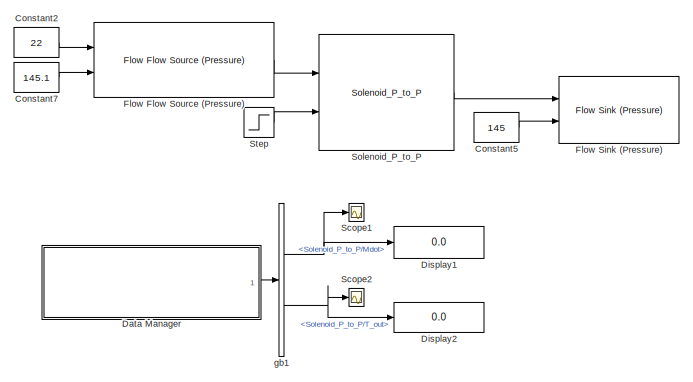
[diagram: root canvas - part 1/3, top center region]
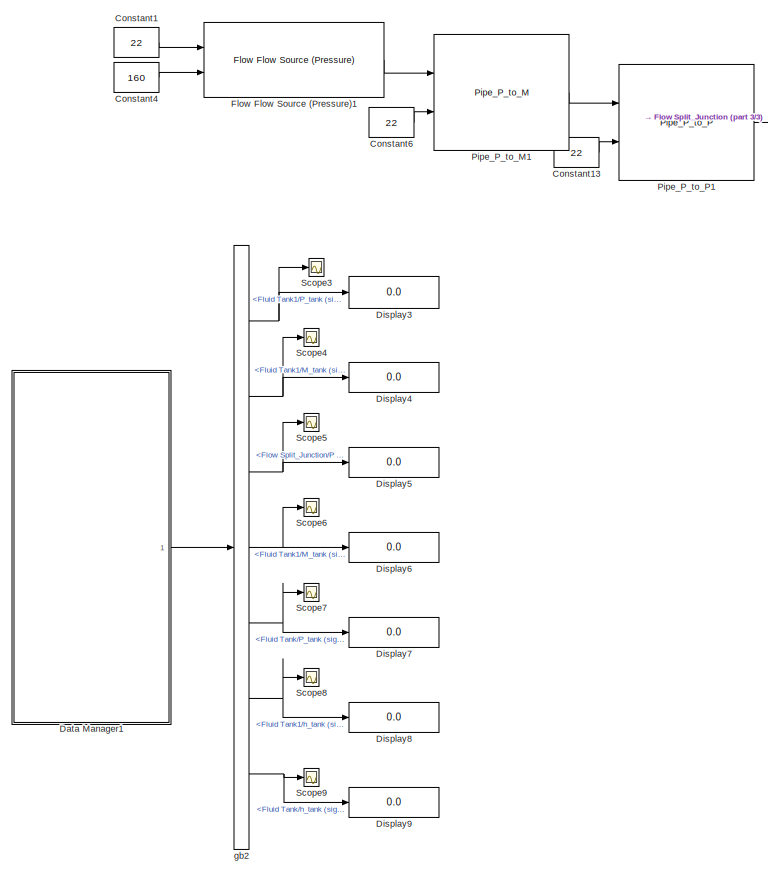
[diagram: root canvas - part 2/3, middle left region]
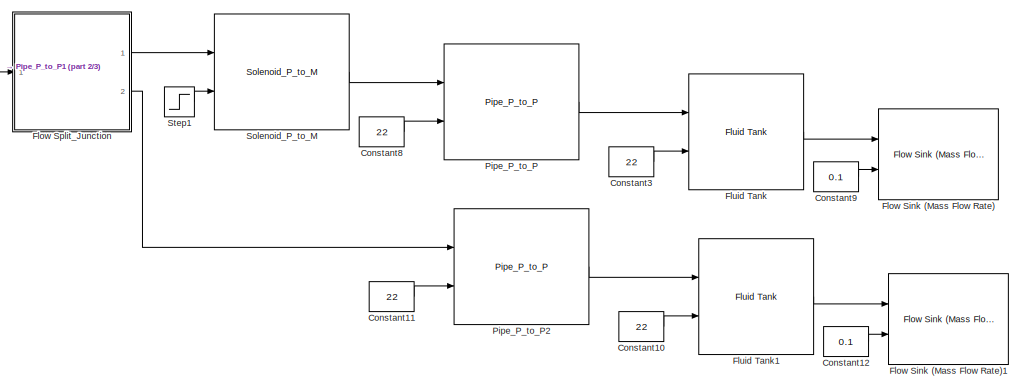
[diagram: root canvas - part 3/3, middle right region]
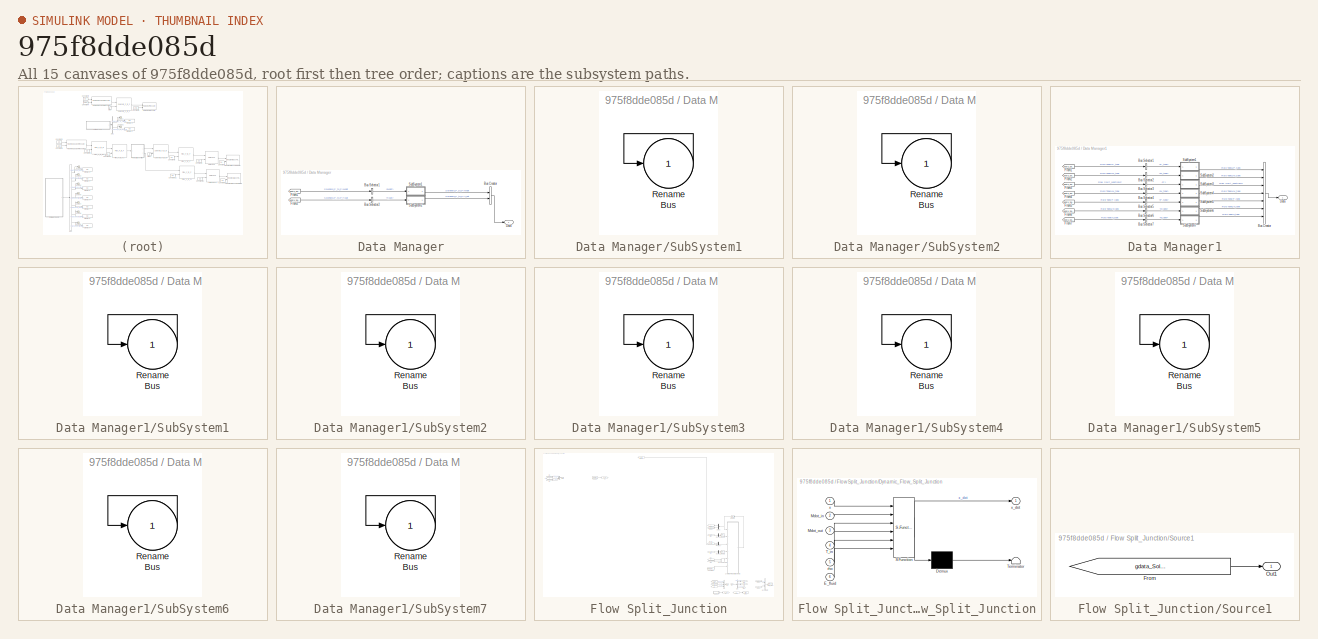
[diagram: thumbnail index - all 15 canvases of the model, root first then tree order]
MODEL slx_975f8dde085d
KIND model
BLOCK [Constant] Constant1
  Value = 22
BLOCK [Constant] Constant10
  Value = 22
BLOCK [Constant] Constant11
  Value = 22
BLOCK [Constant] Constant12
  Value = 0.1
BLOCK [Constant] Constant13
  Value = 22
BLOCK [Constant] Constant2
  Value = 22
BLOCK [Constant] Constant3
  Value = 22
BLOCK [Constant] Constant4
  Value = 160
BLOCK [Constant] Constant5
  Value = 145
BLOCK [Constant] Constant6
  Value = 22
BLOCK [Constant] Constant7
  Value = 145.1
BLOCK [Constant] Constant8
  Value = 22
BLOCK [Constant] Constant9
  Value = 0.1
BLOCK [SubSystem] Data Manager
  AncestorBlock = DAEMOT_Lib/Support Functions/Data Manager
  OpenFcn = data_manager
  Ports = [0, 1]
  RequestExecContextInheritance = off
  UserDataPersistent = on
BLOCK [BusCreator] Data Manager/Bus Creator
  DisplayOption = bar
  Inputs = 2
  Ports = [2, 1]
BLOCK [BusSelector] Data Manager/Bus Selector1
  OutputSignals = Mdot
  Ports = [1, 1]
BLOCK [BusSelector] Data Manager/Bus Selector2
  OutputSignals = T_out
  Ports = [1, 1]
BLOCK [Outport] Data Manager/Data
  IconDisplay = Port number
BLOCK [From] Data Manager/From1
  GotoTag = gdata_Solenoid_testSolenoid_P_to_Pdata_sink1
  TagVisibility = global
  UserDataPersistent = on
BLOCK [From] Data Manager/From2
  GotoTag = gdata_Solenoid_testSolenoid_P_to_Pdata_sink1
  TagVisibility = global
  UserDataPersistent = on
BLOCK [SubSystem] Data Manager/SubSystem1
  Ports = [1, 1]
  RequestExecContextInheritance = off
BLOCK [Outport] Data Manager/SubSystem1/Bus
  IconDisplay = Port number
BLOCK [Inport] Data Manager/SubSystem1/Rename
  IconDisplay = Port number
BLOCK [SubSystem] Data Manager/SubSystem2
  Ports = [1, 1]
  RequestExecContextInheritance = off
BLOCK [Outport] Data Manager/SubSystem2/Bus
  IconDisplay = Port number
BLOCK [Inport] Data Manager/SubSystem2/Rename
  IconDisplay = Port number
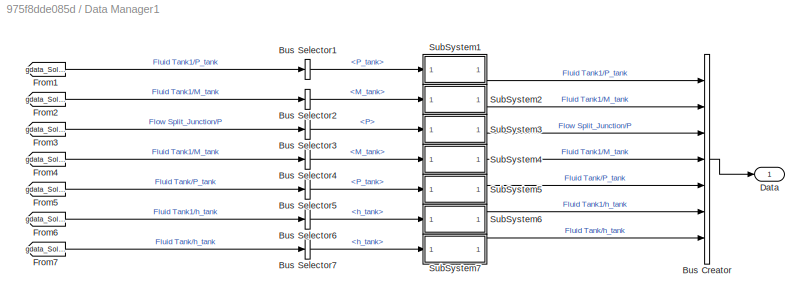
BLOCK [SubSystem] Data Manager1
  AncestorBlock = DAEMOT_Lib/Support Functions/Data Manager
  OpenFcn = data_manager
  Ports = [0, 1]
  RequestExecContextInheritance = off
  UserDataPersistent = on
BLOCK [BusCreator] Data Manager1/Bus Creator
  DisplayOption = bar
  Inputs = 7
  Ports = [7, 1]
BLOCK [BusSelector] Data Manager1/Bus Selector1
  OutputSignals = P_tank
  Ports = [1, 1]
BLOCK [BusSelector] Data Manager1/Bus Selector2
  OutputSignals = M_tank
  Ports = [1, 1]
BLOCK [BusSelector] Data Manager1/Bus Selector3
  OutputSignals = P
  Ports = [1, 1]
BLOCK [BusSelector] Data Manager1/Bus Selector4
  OutputSignals = M_tank
  Ports = [1, 1]
BLOCK [BusSelector] Data Manager1/Bus Selector5
  OutputSignals = P_tank
  Ports = [1, 1]
BLOCK [BusSelector] Data Manager1/Bus Selector6
  OutputSignals = h_tank
  Ports = [1, 1]
BLOCK [BusSelector] Data Manager1/Bus Selector7
  OutputSignals = h_tank
  Ports = [1, 1]
BLOCK [Outport] Data Manager1/Data
  IconDisplay = Port number
BLOCK [From] Data Manager1/From1
  GotoTag = gdata_Solenoid_testFluidTank1data_sink1
  TagVisibility = global
  UserDataPersistent = on
BLOCK [From] Data Manager1/From2
  GotoTag = gdata_Solenoid_testFluidTank1data_sink1
  TagVisibility = global
  UserDataPersistent = on
BLOCK [From] Data Manager1/From3
  GotoTag = gdata_Solenoid_testFlowSplit_Junctiondata_sink1
  TagVisibility = global
  UserDataPersistent = on
BLOCK [From] Data Manager1/From4
  GotoTag = gdata_Solenoid_testFluidTank1data_sink1
  TagVisibility = global
  UserDataPersistent = on
BLOCK [From] Data Manager1/From5
  GotoTag = gdata_Solenoid_testFluidTankdata_sink1
  TagVisibility = global
  UserDataPersistent = on
BLOCK [From] Data Manager1/From6
  GotoTag = gdata_Solenoid_testFluidTank1data_sink1
  TagVisibility = global
  UserDataPersistent = on
BLOCK [From] Data Manager1/From7
  GotoTag = gdata_Solenoid_testFluidTankdata_sink1
  TagVisibility = global
  UserDataPersistent = on
BLOCK [SubSystem] Data Manager1/SubSystem1
  Ports = [1, 1]
  RequestExecContextInheritance = off
BLOCK [Outport] Data Manager1/SubSystem1/Bus
  IconDisplay = Port number
BLOCK [Inport] Data Manager1/SubSystem1/Rename
  IconDisplay = Port number
BLOCK [SubSystem] Data Manager1/SubSystem2
  Ports = [1, 1]
  RequestExecContextInheritance = off
BLOCK [Outport] Data Manager1/SubSystem2/Bus
  IconDisplay = Port number
BLOCK [Inport] Data Manager1/SubSystem2/Rename
  IconDisplay = Port number
BLOCK [SubSystem] Data Manager1/SubSystem3
  Ports = [1, 1]
  RequestExecContextInheritance = off
BLOCK [Outport] Data Manager1/SubSystem3/Bus
  IconDisplay = Port number
BLOCK [Inport] Data Manager1/SubSystem3/Rename
  IconDisplay = Port number
BLOCK [SubSystem] Data Manager1/SubSystem4
  Ports = [1, 1]
  RequestExecContextInheritance = off
BLOCK [Outport] Data Manager1/SubSystem4/Bus
  IconDisplay = Port number
BLOCK [Inport] Data Manager1/SubSystem4/Rename
  IconDisplay = Port number
BLOCK [SubSystem] Data Manager1/SubSystem5
  Ports = [1, 1]
  RequestExecContextInheritance = off
BLOCK [Outport] Data Manager1/SubSystem5/Bus
  IconDisplay = Port number
BLOCK [Inport] Data Manager1/SubSystem5/Rename
  IconDisplay = Port number
BLOCK [SubSystem] Data Manager1/SubSystem6
  Ports = [1, 1]
  RequestExecContextInheritance = off
BLOCK [Outport] Data Manager1/SubSystem6/Bus
  IconDisplay = Port number
BLOCK [Inport] Data Manager1/SubSystem6/Rename
  IconDisplay = Port number
BLOCK [SubSystem] Data Manager1/SubSystem7
  Ports = [1, 1]
  RequestExecContextInheritance = off
BLOCK [Outport] Data Manager1/SubSystem7/Bus
  IconDisplay = Port number
BLOCK [Inport] Data Manager1/SubSystem7/Rename
  IconDisplay = Port number
BLOCK [Display] Display1
  Decimation = 1
  Ports = [1]
BLOCK [Display] Display2
  Decimation = 1
  Ports = [1]
BLOCK [Display] Display3
  Decimation = 1
  Ports = [1]
BLOCK [Display] Display4
  Decimation = 1
  Ports = [1]
BLOCK [Display] Display5
  Decimation = 1
  Ports = [1]
BLOCK [Display] Display6
  Decimation = 1
  Ports = [1]
BLOCK [Display] Display7
  Decimation = 1
  Ports = [1]
BLOCK [Display] Display8
  Decimation = 1
  Ports = [1]
BLOCK [Display] Display9
  Decimation = 1
  Ports = [1]
BLOCK [Reference] Flow Flow Source (Pressure)  REF=DAEMOT_Lib/Components/Flow Flow Source (Pressure)
  M = 0
  M_ext = on
  P = 0
  P_ext = on
  Ports = [2, 1]
  SourceBlock = DAEMOT_Lib/Components/Flow Flow Source (Pressure)
  SourceType = Flow Source (Pressure)
  T = 0
  T_ext = on
BLOCK [Reference] Flow Flow Source (Pressure)1  REF=DAEMOT_Lib/Components/Flow Flow Source (Pressure)
  M = 0
  M_ext = on
  P = 0
  P_ext = on
  Ports = [2, 1]
  SourceBlock = DAEMOT_Lib/Components/Flow Flow Source (Pressure)
  SourceType = Flow Source (Pressure)
  T = 0
  T_ext = on
BLOCK [Reference] Flow Sink (Mass Flow Rate)  REF=DAEMOT_Lib/Components/Flow Sink (Mass Flow Rate)
  M = 0
  M_ext = on
  P = 0
  P_ext = on
  Ports = [2]
  SourceBlock = DAEMOT_Lib/Components/Flow Sink (Mass Flow Rate)
  SourceType = Flow Sink (Mass Flow Rate)
  T = 0
  T_ext = on
BLOCK [Reference] Flow Sink (Mass Flow Rate)1  REF=DAEMOT_Lib/Components/Flow Sink (Mass Flow Rate)
  M = 0
  M_ext = on
  P = 0
  P_ext = on
  Ports = [2]
  SourceBlock = DAEMOT_Lib/Components/Flow Sink (Mass Flow Rate)
  SourceType = Flow Sink (Mass Flow Rate)
  T = 0
  T_ext = on
BLOCK [Reference] Flow Sink (Pressure)  REF=DAEMOT_Lib/Components/Flow Sink (Pressure)
  M = 0
  M_ext = on
  P = 0
  P_ext = on
  Ports = [2]
  SourceBlock = DAEMOT_Lib/Components/Flow Sink (Pressure)
  SourceType = Flow Sink (Pressure)
  T = 0
  T_ext = on
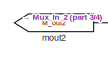
[diagram: Flow Split_Junction - part 1/4, top center region]
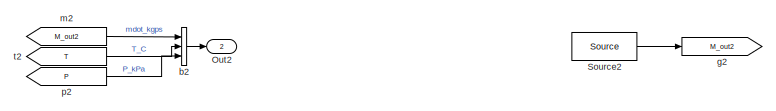
[diagram: Flow Split_Junction - part 2/4, top left region]
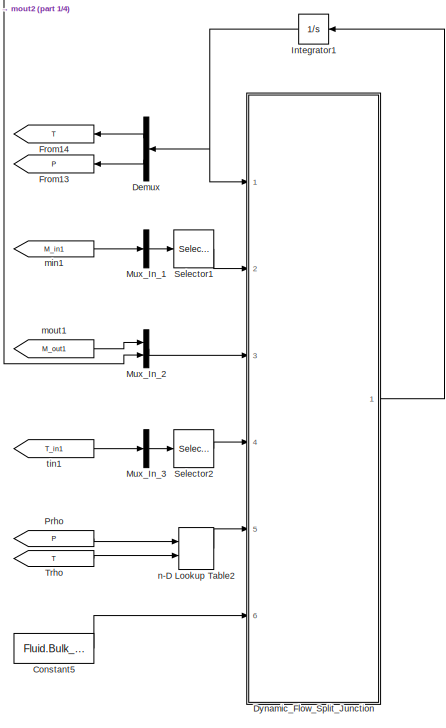
[diagram: Flow Split_Junction - part 3/4, middle right region]
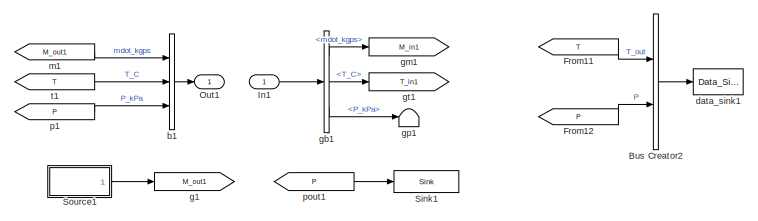
[diagram: Flow Split_Junction - part 4/4, bottom right region]
BLOCK [SubSystem] Flow Split_Junction
  AncestorBlock = DAEMOT_Lib/Components/Flow Split_Junction
  CopyFcn = h      = get_param(gcb,'handle');   % Get block handle\nblk    = gcb; \n\nset_param(blk, 'LinkStatus', 'inactive')
  OpenFcn = load('Fluids.mat');\nSet_Fluid_Popup_Names( Fluid )
  Ports = [1, 2]
  RequestExecContextInheritance = off
BLOCK [BusCreator] Flow Split_Junction/Bus Creator2
  DisplayOption = bar
  Inputs = 2
  Ports = [2, 1]
BLOCK [Constant] Flow Split_Junction/Constant5
  Value = Fluid.Bulk_Mod
BLOCK [Demux] Flow Split_Junction/Demux
  DisplayOption = bar
  Outputs = 2
  Ports = [1, 2]
BLOCK [SubSystem] Flow Split_Junction/Dynamic_Flow_Split_Junction
  ErrorFcn = Stateflow.Translate.translate
  PermitHierarchicalResolution = ExplicitOnly
  Ports = [6, 1]
  RequestExecContextInheritance = off
  SFBlockType = MATLAB Function
  TreatAsAtomicUnit = on
BLOCK [Demux] Flow Split_Junction/Dynamic_Flow_Split_Junction/ Demux 
  Outputs = 1
  Ports = [1, 1]
BLOCK [S-Function] Flow Split_Junction/Dynamic_Flow_Split_Junction/ SFunction 
  EnableBusSupport = on
  FunctionName = sf_sfun
  Parameters = D,E,L,t,v
  PortCounts = [6 2]
  Ports = [6, 2]
  Tag = Stateflow S-Function Solenoid_test 2
BLOCK [Terminator] Flow Split_Junction/Dynamic_Flow_Split_Junction/ Terminator 
BLOCK [Inport] Flow Split_Junction/Dynamic_Flow_Split_Junction/E_fluid
  IconDisplay = Port number
  Port = 6
BLOCK [Inport] Flow Split_Junction/Dynamic_Flow_Split_Junction/Mdot_in
  IconDisplay = Port number
  Port = 2
BLOCK [Inport] Flow Split_Junction/Dynamic_Flow_Split_Junction/Mdot_out
  IconDisplay = Port number
  Port = 3
BLOCK [Inport] Flow Split_Junction/Dynamic_Flow_Split_Junction/T_in
  IconDisplay = Port number
  Port = 4
BLOCK [Inport] Flow Split_Junction/Dynamic_Flow_Split_Junction/rho
  IconDisplay = Port number
  Port = 5
BLOCK [Inport] Flow Split_Junction/Dynamic_Flow_Split_Junction/x
  IconDisplay = Port number
BLOCK [Outport] Flow Split_Junction/Dynamic_Flow_Split_Junction/x_dot
  IconDisplay = Port number
BLOCK [From] Flow Split_Junction/From11
  CloseFcn = tagdialog Close
  GotoTag = T
BLOCK [From] Flow Split_Junction/From12
  CloseFcn = tagdialog Close
  GotoTag = P
BLOCK [Goto] Flow Split_Junction/From13
  GotoTag = P
BLOCK [Goto] Flow Split_Junction/From14
  GotoTag = T
BLOCK [Inport] Flow Split_Junction/In1
  IconDisplay = Port number
BLOCK [Integrator] Flow Split_Junction/Integrator1
  InitialCondition = [T_init P_init]
  Ports = [1, 1]
BLOCK [Mux] Flow Split_Junction/Mux_In_1
  DisplayOption = bar
  Inputs = 1
  Ports = [1, 1]
BLOCK [Mux] Flow Split_Junction/Mux_In_2
  DisplayOption = bar
  Inputs = 2
  Ports = [2, 1]
BLOCK [Mux] Flow Split_Junction/Mux_In_3
  DisplayOption = bar
  Inputs = 1
  Ports = [1, 1]
BLOCK [Outport] Flow Split_Junction/Out1
  IconDisplay = Port number
BLOCK [Outport] Flow Split_Junction/Out2
  IconDisplay = Port number
  Port = 2
BLOCK [From] Flow Split_Junction/Prho
  CloseFcn = tagdialog Close
  GotoTag = P
BLOCK [Selector] Flow Split_Junction/Selector1
  Indices = [1 ]
  InputPortWidth = 1
  Ports = [1, 1]
BLOCK [Selector] Flow Split_Junction/Selector2
  Indices = [1 ]
  InputPortWidth = 1
  Ports = [1, 1]
BLOCK [Reference] Flow Split_Junction/Sink1  REF=DAEMOT_Lib/Support Functions/Sink
  Ports = [1]
  SourceBlock = DAEMOT_Lib/Support Functions/Sink
  SourceType = Sink
BLOCK [SubSystem] Flow Split_Junction/Source1
  Ports = [0, 1]
  RequestExecContextInheritance = off
BLOCK [From] Flow Split_Junction/Source1/From
  GotoTag = gdata_Solenoid_testSolenoid_P_to_MSink1
  TagVisibility = global
BLOCK [Outport] Flow Split_Junction/Source1/Out1
  IconDisplay = Port number
BLOCK [Reference] Flow Split_Junction/Source2  REF=DAEMOT_Lib/Support Functions/Source
  Ports = [0, 1]
  SourceBlock = DAEMOT_Lib/Support Functions/Source
  SourceType = Source
BLOCK [From] Flow Split_Junction/Trho
  CloseFcn = tagdialog Close
  GotoTag = T
BLOCK [BusCreator] Flow Split_Junction/b1
  DisplayOption = bar
  Inputs = 3
  Ports = [3, 1]
BLOCK [BusCreator] Flow Split_Junction/b2
  DisplayOption = bar
  Inputs = 3
  Ports = [3, 1]
BLOCK [Reference] Flow Split_Junction/data_sink1  REF=DAEMOT_Lib/Support Functions/Data_Sink
  Ports = [1]
  SourceBlock = DAEMOT_Lib/Support Functions/Data_Sink
  SourceType = Data Sink
BLOCK [Goto] Flow Split_Junction/g1
  GotoTag = M_out1
BLOCK [Goto] Flow Split_Junction/g2
  GotoTag = M_out2
BLOCK [BusSelector] Flow Split_Junction/gb1
  OutputSignals = mdot_kgps,T_C,P_kPa
  Ports = [1, 3]
BLOCK [Goto] Flow Split_Junction/gm1
  GotoTag = M_in1
BLOCK [Terminator] Flow Split_Junction/gp1
BLOCK [Goto] Flow Split_Junction/gt1
  GotoTag = T_in1
BLOCK [From] Flow Split_Junction/m1
  CloseFcn = tagdialog Close
  GotoTag = M_out1
BLOCK [From] Flow Split_Junction/m2
  GotoTag = M_out2
BLOCK [From] Flow Split_Junction/min1
  CloseFcn = tagdialog Close
  GotoTag = M_in1
BLOCK [From] Flow Split_Junction/mout1
  GotoTag = M_out1
BLOCK [From] Flow Split_Junction/mout2
  GotoTag = M_out2
BLOCK [Lookup_n-D] Flow Split_Junction/n-D Lookup Table2
  BreakpointsForDimension1 = Fluid.P
  BreakpointsForDimension2 = Fluid.T
  BreakpointsForDimension3 = [5, 7]
  ExtrapMethod = Clip
  Ports = [2, 1]
  RndMeth = Simplest
  Table = Fluid.Rho_pt
  UseLastTableValue = on
BLOCK [From] Flow Split_Junction/p1
  CloseFcn = tagdialog Close
  GotoTag = P
BLOCK [From] Flow Split_Junction/p2
  GotoTag = P
BLOCK [From] Flow Split_Junction/pout1
  GotoTag = P
BLOCK [From] Flow Split_Junction/t1
  CloseFcn = tagdialog Close
  GotoTag = T
BLOCK [From] Flow Split_Junction/t2
  GotoTag = T
BLOCK [From] Flow Split_Junction/tin1
  GotoTag = T_in1
BLOCK [Reference] Fluid Tank  REF=DAEMOT_Lib/Components/Fluid Tank
  D = 0.08
  H = 0
  M_init = 1.0433
  P_init = 103.0361
  Pamb = 101
  Ports = [2, 1]
  SourceBlock = DAEMOT_Lib/Components/Fluid Tank
  SourceType = Fluid Tank
  T_init = 22
  Tamb_init = 22
  fld = PG50
  h_init = 0.2
BLOCK [Reference] Fluid Tank1  REF=DAEMOT_Lib/Components/Fluid Tank
  D = 0.08
  H = 0
  M_init = 1.0433
  P_init = 103.0361
  Pamb = 101
  Ports = [2, 1]
  SourceBlock = DAEMOT_Lib/Components/Fluid Tank
  SourceType = Fluid Tank
  T_init = 22
  Tamb_init = 22
  fld = PG50
  h_init = 0.2
BLOCK [Reference] Pipe_P_to_M1  REF=DAEMOT_Lib/Components/Pipe_P_to_M
  D = 13*1e-3
  E = 2.4e6
  H = 0
  KL = 0
  KL_tube = 0
  L = 0.1
  Num_BV = 0
  Num_CV = 0
  Num_MFRS = 0
  Num_PS = 0
  Num_TS = 0
  P_init = 101
  Ports = [2, 1]
  SourceBlock = DAEMOT_Lib/Components/Pipe_P_to_M
  SourceType = Pipe (P to M)
  T_init = 22
  Tamb_init = 22
  dH = 0
  e_rough = 0.01*1e-3
  f = 0.05
  fld = PG50
  t = 0.0015
  v = 0.4
BLOCK [Reference] Pipe_P_to_P  REF=DAEMOT_Lib/Components/Pipe_P_to_P
  D = 13*1e-3
  E = 2.4e6
  H = 0
  KL = 0
  KL_tube = 0
  L = 0.1
  Num_BV = 0
  Num_CV = 0
  Num_MFRS = 0
  Num_PS = 0
  Num_TS = 0
  Ports = [2, 1]
  SourceBlock = DAEMOT_Lib/Components/Pipe_P_to_P
  SourceType = Pipe (P to P)
  T_init = 22
  Tamb_init = 22
  dH = 0
  e_rough = 0.01*1e-3
  f = 0.05
  fld = PG50
  t = 0.0015
  v = 0.4
BLOCK [Reference] Pipe_P_to_P1  REF=DAEMOT_Lib/Components/Pipe_P_to_P
  D = 13*1e-3
  E = 2.4e6
  H = 0
  KL = 0
  KL_tube = 0
  L = 0.1
  Num_BV = 0
  Num_CV = 0
  Num_MFRS = 0
  Num_PS = 0
  Num_TS = 0
  Ports = [2, 1]
  SourceBlock = DAEMOT_Lib/Components/Pipe_P_to_P
  SourceType = Pipe (P to P)
  T_init = 22
  Tamb_init = 22
  dH = 0
  e_rough = 0.01*1e-3
  f = 0.05
  fld = PG50
  t = 0.0015
  v = 0.4
BLOCK [Reference] Pipe_P_to_P2  REF=DAEMOT_Lib/Components/Pipe_P_to_P
  D = 13*1e-3
  E = 2.4e6
  H = 0
  KL = 0
  KL_tube = 0
  L = 0.1
  Num_BV = 0
  Num_CV = 0
  Num_MFRS = 0
  Num_PS = 0
  Num_TS = 0
  Ports = [2, 1]
  SourceBlock = DAEMOT_Lib/Components/Pipe_P_to_P
  SourceType = Pipe (P to P)
  T_init = 22
  Tamb_init = 22
  dH = 0
  e_rough = 0.01*1e-3
  f = 0.05
  fld = PG50
  t = 0.0015
  v = 0.4
BLOCK [Scope] Scope1
  Floating = off
  LimitDataPoints = off
  NumInputPorts = 1
  Ports = [1]
  ShowLegends = off
BLOCK [Scope] Scope2
  Floating = off
  LimitDataPoints = off
  NumInputPorts = 1
  Ports = [1]
  SaveName = ScopeData1
  ShowLegends = off
BLOCK [Scope] Scope3
  Floating = off
  LimitDataPoints = off
  NumInputPorts = 1
  Ports = [1]
  SaveName = ScopeData2
  ShowLegends = off
BLOCK [Scope] Scope4
  Floating = off
  LimitDataPoints = off
  NumInputPorts = 1
  Ports = [1]
  SaveName = ScopeData3
  ShowLegends = off
BLOCK [Scope] Scope5
  Floating = off
  LimitDataPoints = off
  NumInputPorts = 1
  Ports = [1]
  SaveName = ScopeData4
  ShowLegends = off
BLOCK [Scope] Scope6
  Floating = off
  LimitDataPoints = off
  NumInputPorts = 1
  Ports = [1]
  SaveName = ScopeData5
  ShowLegends = off
BLOCK [Scope] Scope7
  Floating = off
  LimitDataPoints = off
  NumInputPorts = 1
  Ports = [1]
  SaveName = ScopeData6
  ShowLegends = off
BLOCK [Scope] Scope8
  Floating = off
  LimitDataPoints = off
  NumInputPorts = 1
  Ports = [1]
  SaveName = ScopeData7
  ShowLegends = off
BLOCK [Scope] Scope9
  Floating = off
  LimitDataPoints = off
  NumInputPorts = 1
  Ports = [1]
  SaveName = ScopeData8
  ShowLegends = off
BLOCK [Reference] Solenoid_P_to_M  REF=DAEMOT_Lib/Components/Solenoid_P_to_M
  D = 0.013
  E = 2.4e6
  H = 0
  KL = 0
  L = 0.1
  P_init = 101
  Ports = [2, 1]
  SourceBlock = DAEMOT_Lib/Components/Solenoid_P_to_M
  SourceType = Solenoid (P to M)
  T_init = 22
  Tamb_init = 22
  e_rough = 0.01*1e-3
  f = 0.05
  fld = PG50
  t = 0.0015
  v = 0.4
BLOCK [Reference] Solenoid_P_to_P  REF=DAEMOT_Lib/Components/Solenoid_P_to_P
  D = 0.013
  KL = 0
  L = 0.1
  Ports = [2, 1]
  SourceBlock = DAEMOT_Lib/Components/Solenoid_P_to_P
  SourceType = Solenoid Valve (P to P)
  T_init = 22
  f = 0.05
  fld = PG50
BLOCK [Step] Step
  SampleTime = 0
  Time = 5
BLOCK [Step] Step1
  After = 0
  Before = 1
  SampleTime = 0
  Time = 5
BLOCK [BusSelector] gb1
  OutputSignals = Solenoid_P_to_P/Mdot,Solenoid_P_to_P/T_out
  Ports = [1, 2]
BLOCK [BusSelector] gb2
  OutputSignals = Fluid Tank1/P_tank (signal 1),Fluid Tank1/M_tank (signal 2),Flow Split_Junction/P (signal 3),Fluid Tank1/M_tank (signal 4),Fluid Tank/P_tank (signal 5),Fluid Tank1/h_tank (signal 6),Fluid Tank/h_tank (signal 7)
  Ports = [1, 7]
LINE Constant10:1 -> Fluid Tank1:2
LINE Constant11:1 -> Pipe_P_to_P2:2
LINE Constant12:1 -> Flow Sink (Mass Flow Rate)1:2
LINE Constant13:1 -> Pipe_P_to_P1:2
LINE Constant1:1 -> Flow Flow Source (Pressure)1:1
LINE Constant2:1 -> Flow Flow Source (Pressure):1
LINE Constant3:1 -> Fluid Tank:2
LINE Constant4:1 -> Flow Flow Source (Pressure)1:2
LINE Constant5:1 -> Flow Sink (Pressure):2
LINE Constant6:1 -> Pipe_P_to_M1:2
LINE Constant7:1 -> Flow Flow Source (Pressure):2
LINE Constant8:1 -> Pipe_P_to_P:2
LINE Constant9:1 -> Flow Sink (Mass Flow Rate):2
LINE Data Manager1:1 -> gb2:1
LINE Data Manager:1 -> gb1:1
LINE Flow Flow Source (Pressure)1:1 -> Pipe_P_to_M1:1
LINE Flow Flow Source (Pressure):1 -> Solenoid_P_to_P:1
LINE Flow Split_Junction:1 -> Solenoid_P_to_M:1
LINE Flow Split_Junction:2 -> Pipe_P_to_P2:1
LINE Fluid Tank1:1 -> Flow Sink (Mass Flow Rate)1:1
LINE Fluid Tank:1 -> Flow Sink (Mass Flow Rate):1
LINE Pipe_P_to_M1:1 -> Pipe_P_to_P1:1
LINE Pipe_P_to_P1:1 -> Flow Split_Junction:1
LINE Pipe_P_to_P2:1 -> Fluid Tank1:1
LINE Pipe_P_to_P:1 -> Fluid Tank:1
LINE Solenoid_P_to_M:1 -> Pipe_P_to_P:1
LINE Solenoid_P_to_P:1 -> Flow Sink (Pressure):1
LINE Step1:1 -> Solenoid_P_to_M:2
LINE Step:1 -> Solenoid_P_to_P:2
NET gb1:1 -> Display1:1, Scope1:1
NET gb1:2 -> Display2:1, Scope2:1
NET gb2:1 -> Display3:1, Scope3:1
NET gb2:2 -> Display4:1, Scope4:1
NET gb2:3 -> Display5:1, Scope5:1
NET gb2:4 -> Display6:1, Scope6:1
NET gb2:5 -> Display7:1, Scope7:1
NET gb2:6 -> Display8:1, Scope8:1
NET gb2:7 -> Display9:1, Scope9:1
note: NET lines group one-source signal fan-out (src -> all destinations, sorted); 1:1 wires keep LINE
CHART Flow Split_Junction/Dynamic_Flow_Split_Junction states=1 transitions=1
  STATE_LABEL 'eML_blk_kernel()'
  STATE_LABEL 'SCRIPT:\nfunction x_dot  = Dynamic_Flow_Split_Junction(x,Mdot_in,Mdot_out,T_in,D,L,t,E,v,rho,E_fluid)\n\n% Constants and Conversions\nMdot_in_tot     = sum(Mdot_in);     % Total mass flow rate in\nMdot_out_tot    = sum(Mdot_out);    % Total mass flow rate out\nV               = pi*D^2/4*L;       % Volume\n\n% Parse states\nT      = x(1);                  % Temperature of the tank\nP      = x(2);            ...<+295ch>'
